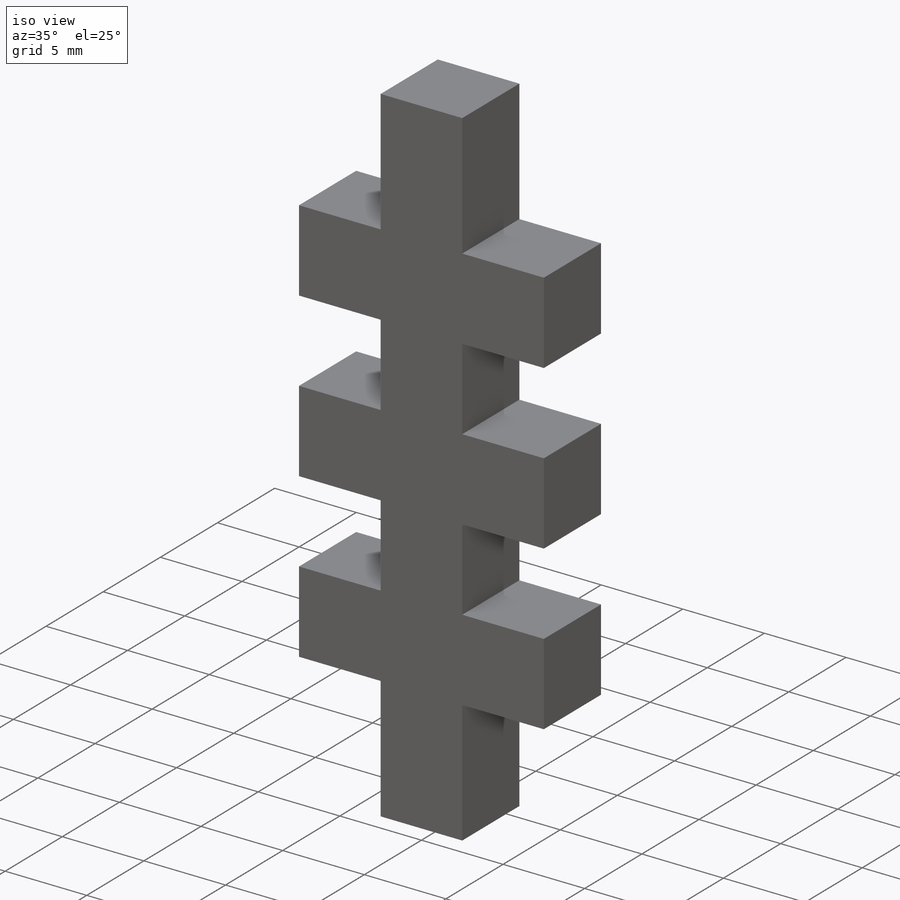
[diagram: iso view]
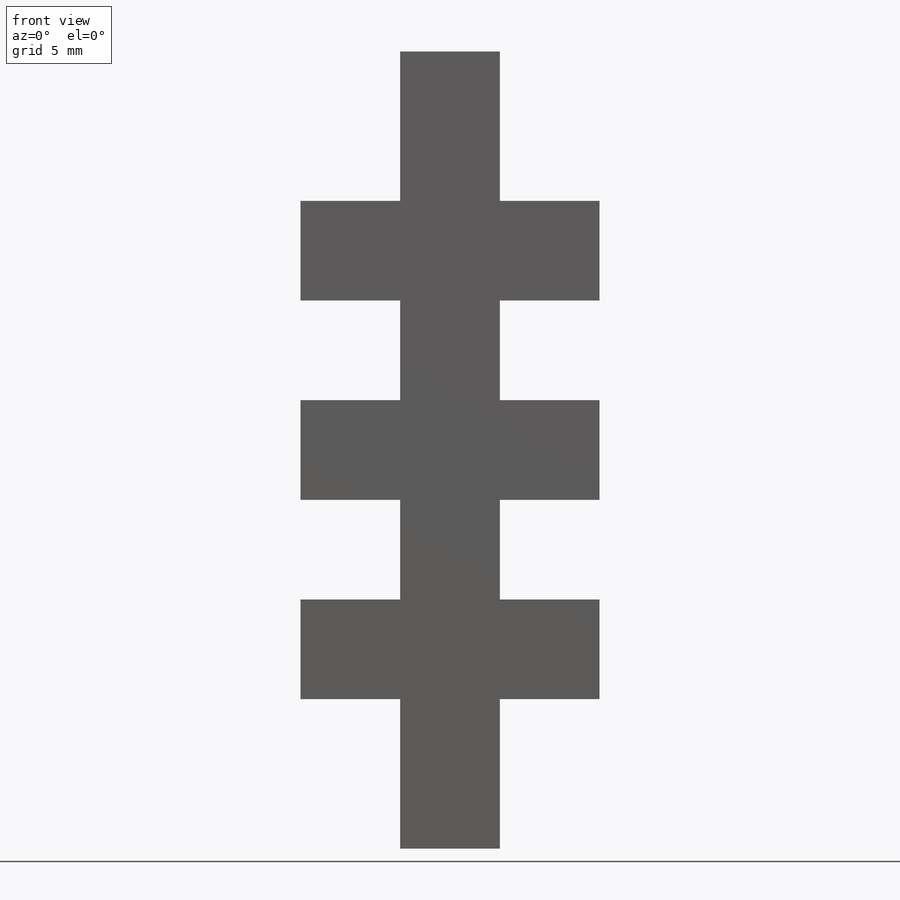
[diagram: front view]
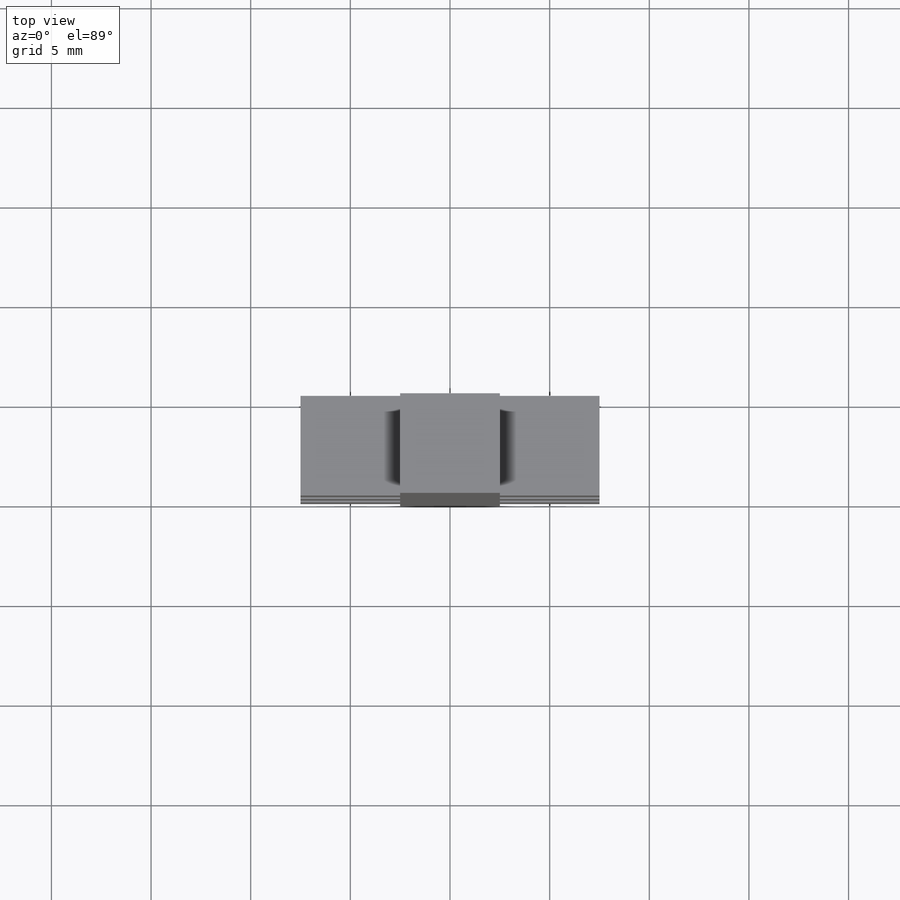
[diagram: top view]
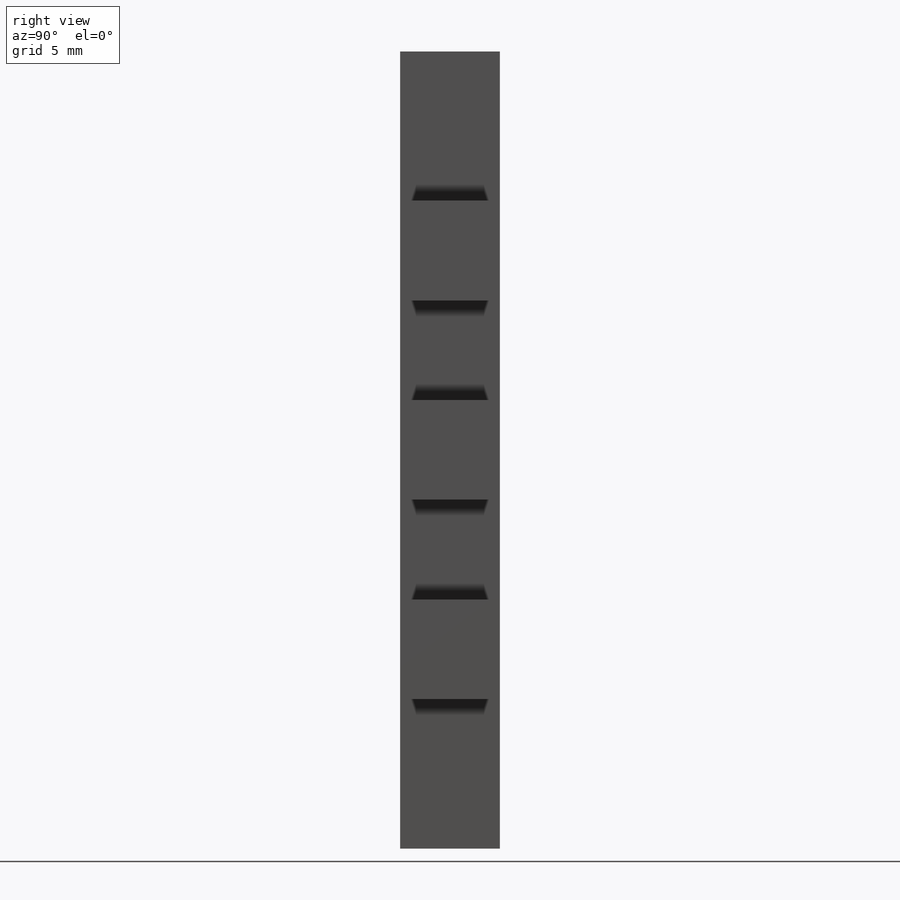
[diagram: right view]
SOLIDWORKS PART (.sldprt)
format: sldprt  version: not decoded by parser v0  size: 183,808 bytes
history: native  units: mm
features: mirror x4, plane x3, sketch x3, cut_extrude x2, material x1, extrude x1 (+10 scaffold rows collapsed)
feature tree (24):
  scaffold x10  (default folders/planes/origin — collapsed)
  material  "Matériau <non spécifié>"
  plane  "Plan de face"
  plane  "Plan de dessus"
  plane  "Plan de droite"
  sketch  "Esquisse6"  dims[D1=40.0mm D2=15.0mm D3=7.5mm D4=20.0mm]
  extrude  "Boss.-Extru.3"  Depth=5mm
  sketch  "Esquisse7"  dims[D1=5.0mm D2=7.5mm D3=0.0mm D4=0.0mm]
  cut_extrude  "Enlèv. mat.-Extru.4"  Depth=5mm
  mirror  "Symétrie3"
  mirror  "Symétrie4"
  sketch  "Esquisse9"  dims[D1=5.0mm D2=5.0mm D3=5.0mm]
  cut_extrude  "Enlèv. mat.-Extru.6"  Depth=5mm
  mirror  "Symétrie5"
  mirror  "Symétrie6"
decode coverage: 6 of 10 modeling features carry decoded parameters
note: suppression state not decoded; provenance and decode notes live in map.json
